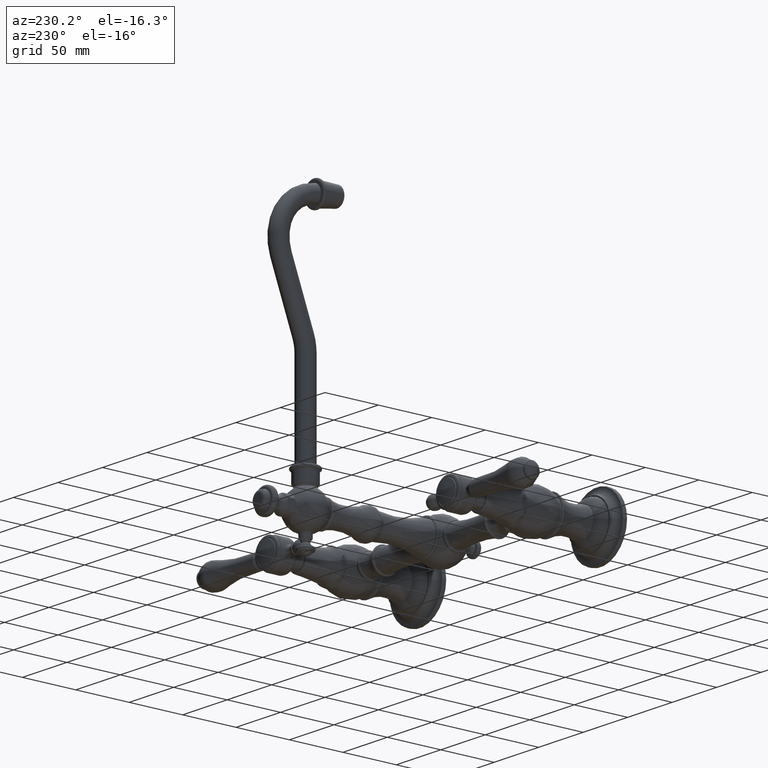
[diagram: clean part render]
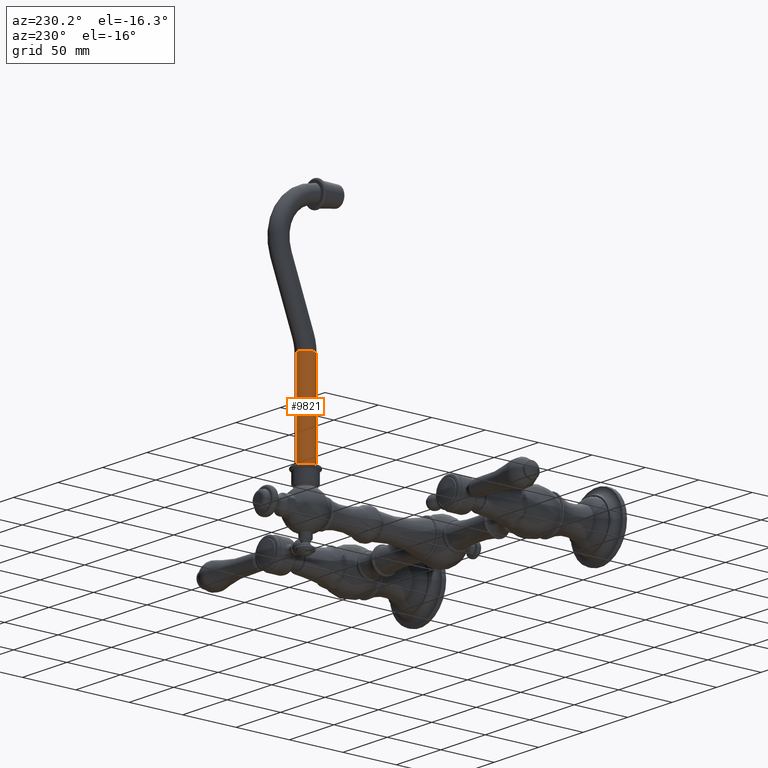
[diagram: same view with one face highlighted and labeled with its STEP entity id]
A machine part, auxiliary view. The second image highlights one B-rep face of the part: STEP entity #9821.
In plain terms, the highlighted cylindrical surface (edge-blend (fillet) strip) has radius 7.9375 mm, axis along (0, 0, 1).
Its self-contained STEP definition (entity closure, byte-faithful):
#8046=CARTESIAN_POINT('',(0.E0,4.980751237625E0,4.624490080895E0));
#8047=DIRECTION('',(0.E0,0.E0,1.E0));
#8048=DIRECTION('',(0.E0,1.E0,0.E0));
#8049=AXIS2_PLACEMENT_3D('',#8046,#8047,#8048);
#8062=DIRECTION('',(0.E0,0.E0,1.E0));
#8063=VECTOR('',#8062,3.35E0);
#8064=CARTESIAN_POINT('',(0.E0,5.293251237625E0,1.274490080895E0));
#8065=LINE('',#8064,#8063);
#8077=CARTESIAN_POINT('',(0.E0,4.980751237625E0,1.274490080895E0));
#8078=DIRECTION('',(0.E0,0.E0,1.E0));
#8079=DIRECTION('',(0.E0,1.E0,0.E0));
#8080=AXIS2_PLACEMENT_3D('',#8077,#8078,#8079);
#9331=DIRECTION('',(0.E0,0.E0,1.E0));
#9332=VECTOR('',#9331,3.35E0);
#9333=CARTESIAN_POINT('',(0.E0,4.668251237625E0,1.274490080895E0));
#9334=LINE('',#9333,#9332);
#9475=CARTESIAN_POINT('',(0.E0,4.668251237625E0,4.624490080895E0));
#9476=CARTESIAN_POINT('',(0.E0,5.293251237625E0,4.624490080895E0));
#9477=VERTEX_POINT('',#9475);
#9478=VERTEX_POINT('',#9476);
#9487=CARTESIAN_POINT('',(0.E0,4.668251237625E0,1.274490080895E0));
#9488=CARTESIAN_POINT('',(0.E0,5.293251237625E0,1.274490080895E0));
#9489=VERTEX_POINT('',#9487);
#9490=VERTEX_POINT('',#9488);
#9807=CARTESIAN_POINT('',(0.E0,4.980751237625E0,8.744900808952E-1));
#9808=DIRECTION('',(0.E0,0.E0,1.E0));
#9809=DIRECTION('',(0.E0,-1.E0,0.E0));
#9810=AXIS2_PLACEMENT_3D('',#9807,#9808,#9809);
#9811=CYLINDRICAL_SURFACE('',#9810,3.125E-1);
#9813=ORIENTED_EDGE('',*,*,#9812,.F.);
#9815=ORIENTED_EDGE('',*,*,#9814,.T.);
#9816=ORIENTED_EDGE('',*,*,#9790,.T.);
#9818=ORIENTED_EDGE('',*,*,#9817,.F.);
#9819=EDGE_LOOP('',(#9813,#9815,#9816,#9818));
#9820=FACE_OUTER_BOUND('',#9819,.F.);
#8050=CIRCLE('',#8049,3.125E-1);
#8081=CIRCLE('',#8080,3.125E-1);
#9790=EDGE_CURVE('',#9478,#9477,#8050,.T.);
#9812=EDGE_CURVE('',#9490,#9489,#8081,.T.);
#9814=EDGE_CURVE('',#9490,#9478,#8065,.T.);
#9817=EDGE_CURVE('',#9489,#9477,#9334,.T.);
#9821=ADVANCED_FACE('',(#9820),#9811,.T.);